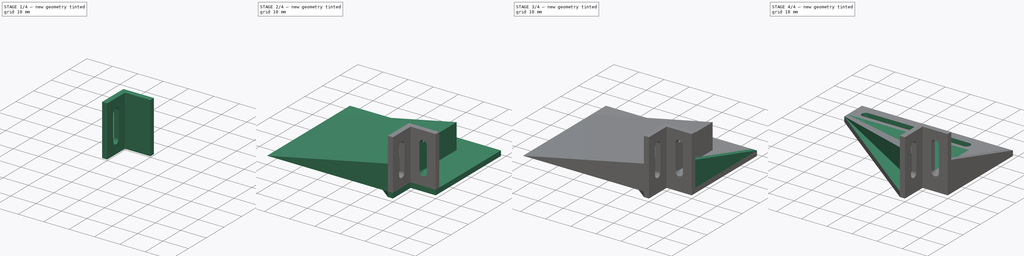
[diagram: build sequence overview — one tinted view per stage of 4, left to right]
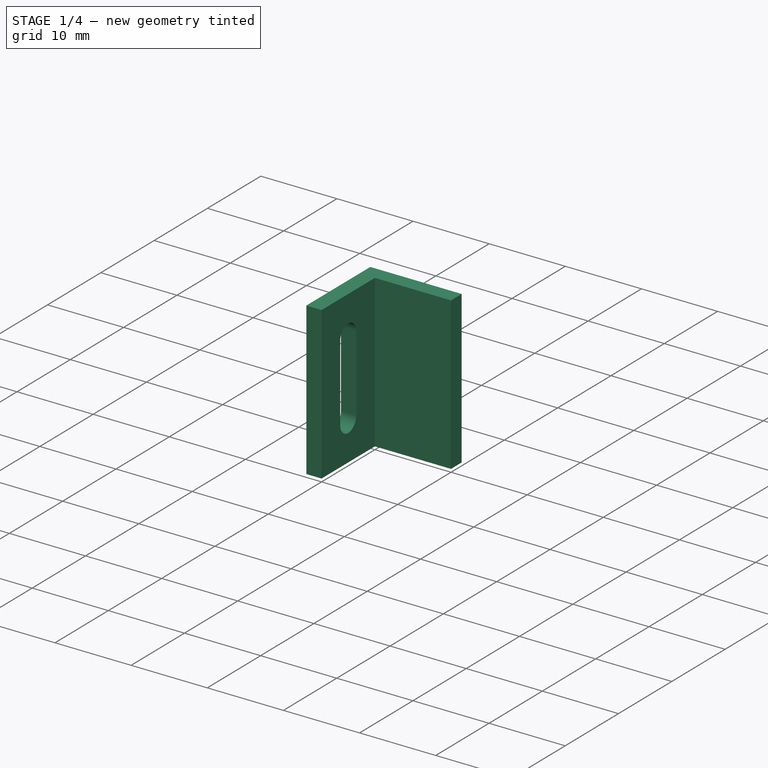
[diagram: stage 1 of 4 — iso view after this stage's code; geometry added in this stage tinted green]
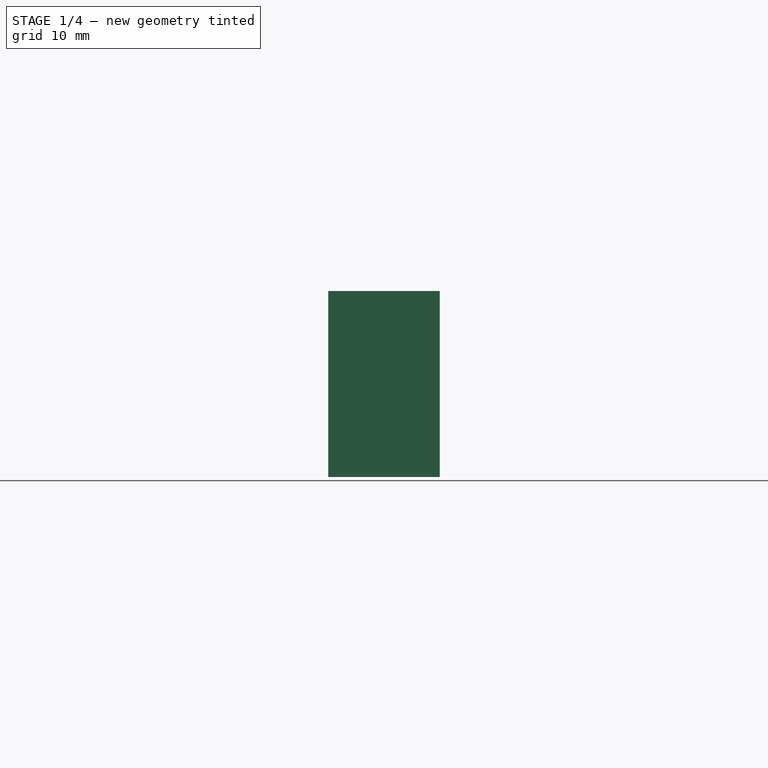
[diagram: stage 1 of 4 — front view after this stage's code; geometry added in this stage tinted green]
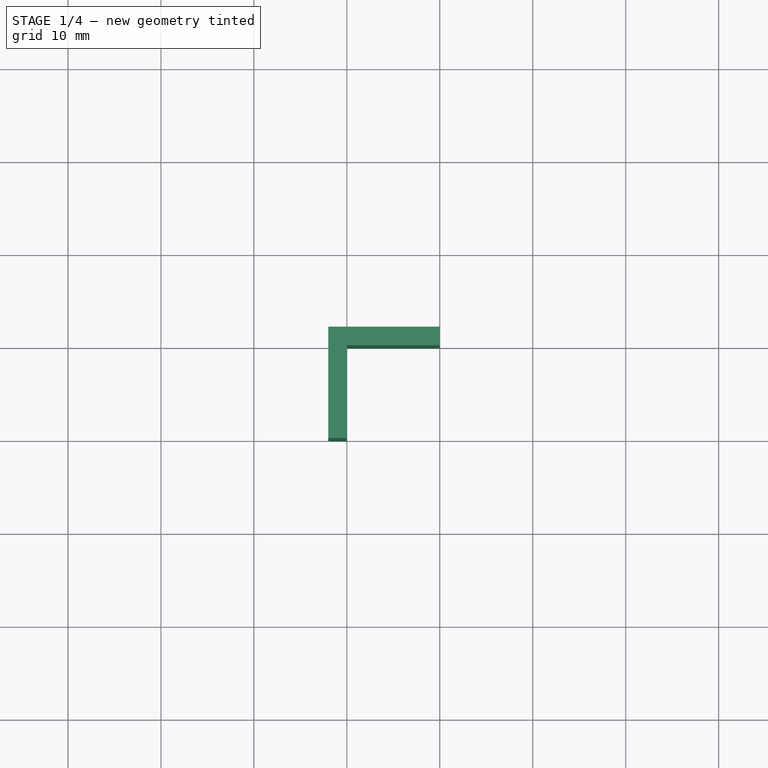
[diagram: stage 1 of 4 — top view after this stage's code; geometry added in this stage tinted green]
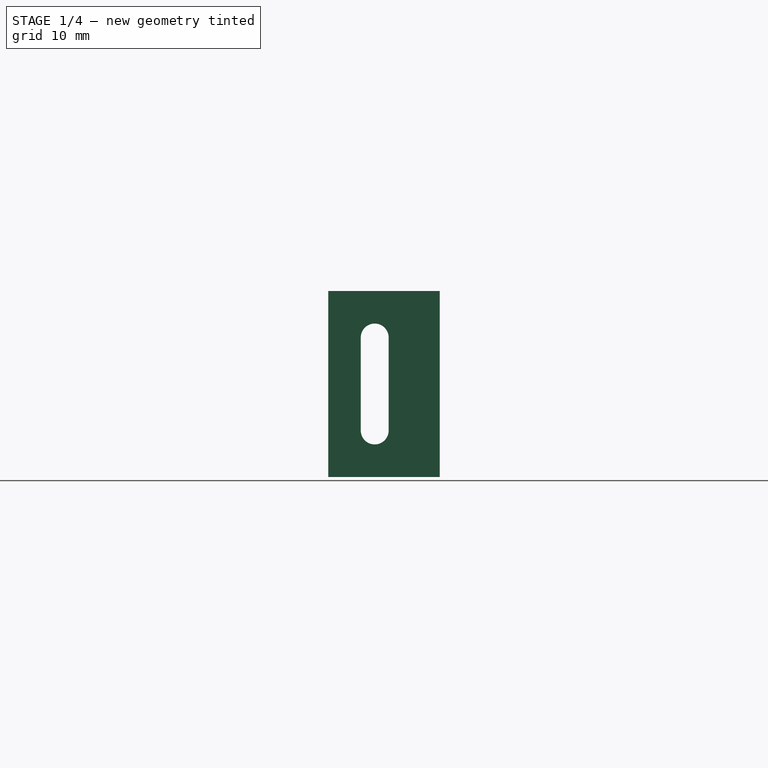
[diagram: stage 1 of 4 — right view after this stage's code; geometry added in this stage tinted green]
FCSTD DOCUMENT  (FreeCAD 0.17R13541 (Git))
Label: PowerTopBracket
License: All rights reserved
LicenseURL: http://en.wikipedia.org/wiki/All_rights_reserved
objects: Sketcher::SketchObject×11, PartDesign::Pocket×6, PartDesign::Pad×5, PartDesign::Body×1
note: 34 computed .brp shape members not serialized (recipe doc carries the construction recipe); baked Part::Feature solids carry a one-line shape summary decoded from their .brp

FEATURE [Sketcher::SketchObject] Sketch
  MapMode = 5
  Placement = pos=(0,0,0) rot=(1,0,0;1.5708rad)
  Support = -> [XZ_Plane001]
  sketch-geometry (4):
    g0: LineSegment StartX=0 StartY=0 StartZ=0 EndX=-2 EndY=0 EndZ=0
    g1: LineSegment StartX=-2 StartY=0 StartZ=0 EndX=-2 EndY=20 EndZ=0
    g2: LineSegment StartX=-2 StartY=20 StartZ=0 EndX=0 EndY=20 EndZ=0
    g3: LineSegment StartX=0 StartY=20 StartZ=0 EndX=0 EndY=0 EndZ=0
  constraints (11):
    c: Coincident(g0,g1)
    c: Coincident(g1,g2)
    c: Coincident(g2,g3)
    c: Coincident(g3,g0)
    c: Horizontal(g0)
    c: Horizontal(g2)
    c: Vertical(g1)
    c: Vertical(g3)
    c: Coincident(g0,g-1)
    c: Distance(g0) = 2
    c: Distance(g1) = 20
FEATURE [PartDesign::Pad] Pad  label="Rack Mount 1"
  Length = 10
  Length2 = 100
  Placement = pos=(0,0,0) rot=(1,0,0;1.5708rad)
  Profile = -> Sketch
  Type = 0
FEATURE [Sketcher::SketchObject] Sketch001
  MapMode = 5
  Placement = pos=(0,0,0) rot=(1,0,0;1.5708rad)
  Support = -> [XZ_Plane001]
  sketch-geometry (6):
    g0: LineSegment [constr] StartX=5 StartY=0 StartZ=0 EndX=5 EndY=20 EndZ=0
    g1: LineSegment [constr] StartX=0 StartY=15 StartZ=0 EndX=10 EndY=15 EndZ=0
    g2: ArcOfCircle CenterX=5 CenterY=15 CenterZ=0 NormalX=0 NormalY=0 NormalZ=1 AngleXU=0 Radius=1.5 StartAngle=0 EndAngle=3.14159
    g3: ArcOfCircle CenterX=5 CenterY=5 CenterZ=0 NormalX=0 NormalY=0 NormalZ=1 AngleXU=0 Radius=1.5 StartAngle=3.14159 EndAngle=6.28319
    g4: LineSegment StartX=3.5 StartY=15 StartZ=0 EndX=3.5 EndY=5 EndZ=0
    g5: LineSegment StartX=6.5 StartY=15 StartZ=0 EndX=6.5 EndY=5 EndZ=0
  constraints (18):
    c: Vertical(g0)
    c: Distance(g0) = 20
    c: DistanceX(g0) = 5
    c: DistanceY(g0) = 0
    c: Horizontal(g1)
    c: Distance(g1) = 10
    c: DistanceX(g1) = 0
    c: DistanceY(g1) = 15
    c: Tangent(g2,g5) = 1.5708
    c: Tangent(g2,g4) = -1.5708
    c: Tangent(g4,g3) = -1.5708
    c: Tangent(g5,g3) = 1.5708
    c: Vertical(g4)
    c: Equal(g2,g3)
    c: Radius(g2) = 1.5
    c: PointOnObject(g2,g1)
    c: PointOnObject(g2,g0)
    c: Distance(g4) = 10
FEATURE [Sketcher::SketchObject] Sketch002
  MapMode = 5
  Placement = pos=(0,0,0) rot=(0.57735,0.57735,0.57735;2.0944rad)
  Support = -> [YZ_Plane001]
  sketch-geometry (8):
    g0: LineSegment [constr] StartX=0 StartY=20 StartZ=0 EndX=-10 EndY=0 EndZ=0
    g1: LineSegment [constr] StartX=-10 StartY=20 StartZ=0 EndX=0 EndY=0 EndZ=0
    g2: LineSegment [constr] StartX=-5 StartY=20 StartZ=0 EndX=-5 EndY=0 EndZ=0
    g3: LineSegment [constr] StartX=-10 StartY=15 StartZ=0 EndX=0 EndY=15 EndZ=0
    g4: ArcOfCircle CenterX=-5 CenterY=15 CenterZ=0 NormalX=0 NormalY=0 NormalZ=1 AngleXU=0 Radius=1.5 StartAngle=0 EndAngle=3.14159
    g5: ArcOfCircle CenterX=-5 CenterY=5 CenterZ=0 NormalX=0 NormalY=0 NormalZ=1 AngleXU=0 Radius=1.5 StartAngle=3.14159 EndAngle=6.28319
    g6: LineSegment StartX=-6.5 StartY=15 StartZ=0 EndX=-6.5 EndY=5 EndZ=0
    g7: LineSegment StartX=-3.5 StartY=15 StartZ=0 EndX=-3.5 EndY=5 EndZ=0
  constraints (25):
    c: PointOnObject(g0,g-2)
    c: PointOnObject(g0,g-1)
    c: Coincident(g1,g-1)
    c: DistanceY(g0,g0) = 20
    c: DistanceX(g1) = -10
    c: DistanceY(g1) = 20
    c: DistanceX(g0,g0) = 10
    c: Vertical(g2)
    c: Distance(g2) = 20
    c: DistanceX(g2) = -5
    c: DistanceY(g2) = 0
    c: Horizontal(g3)
    c: Distance(g3) = 10
    c: DistanceX(g3) = 0
    c: DistanceY(g3) = 15
    c: Tangent(g4,g7) = 1.5708
    c: Tangent(g4,g6) = -1.5708
    c: Tangent(g6,g5) = -1.5708
    c: Tangent(g7,g5) = 1.5708
    c: Vertical(g6)
    c: Equal(g4,g5)
    c: PointOnObject(g4,g2)
    c: PointOnObject(g4,g3)
    c: Radius(g4) = 1.5
    c: Distance(g6) = 10
FEATURE [PartDesign::Pocket] Pocket  label="Rack Mount hole 1"
  BaseFeature = -> Pad
  Length = 2
  Length2 = 100
  Placement = pos=(0,0,0) rot=(1,0,0;1.5708rad)
  Profile = -> Sketch002
  Type = 0
FEATURE [Sketcher::SketchObject] Sketch003
  MapMode = 5
  Placement = pos=(0,0,0) rot=(0.57735,0.57735,0.57735;2.0944rad)
  Support = -> [YZ_Plane001]
  sketch-geometry (4):
    g0: LineSegment StartX=0 StartY=20 StartZ=0 EndX=2 EndY=20 EndZ=0
    g1: LineSegment StartX=2 StartY=20 StartZ=0 EndX=2 EndY=0 EndZ=0
    g2: LineSegment StartX=2 StartY=0 StartZ=0 EndX=0 EndY=0 EndZ=0
    g3: LineSegment StartX=0 StartY=0 StartZ=0 EndX=0 EndY=20 EndZ=0
  constraints (12):
    c: Coincident(g0,g1)
    c: Coincident(g1,g2)
    c: Coincident(g2,g3)
    c: Coincident(g3,g0)
    c: Horizontal(g0)
    c: Horizontal(g2)
    c: Vertical(g1)
    c: Vertical(g3)
    c: Distance(g0) = 2
    c: Distance(g1) = 20
    c: DistanceX(g1) = 2
    c: DistanceY(g1) = 0
FEATURE [PartDesign::Pad] Pad001  label="Rack Mount 2"
  BaseFeature = -> Pocket
  Length = 10
  Length2 = 2
  Placement = pos=(0,0,0) rot=(1,0,0;1.5708rad)
  Profile = -> Sketch003
  Type = 4
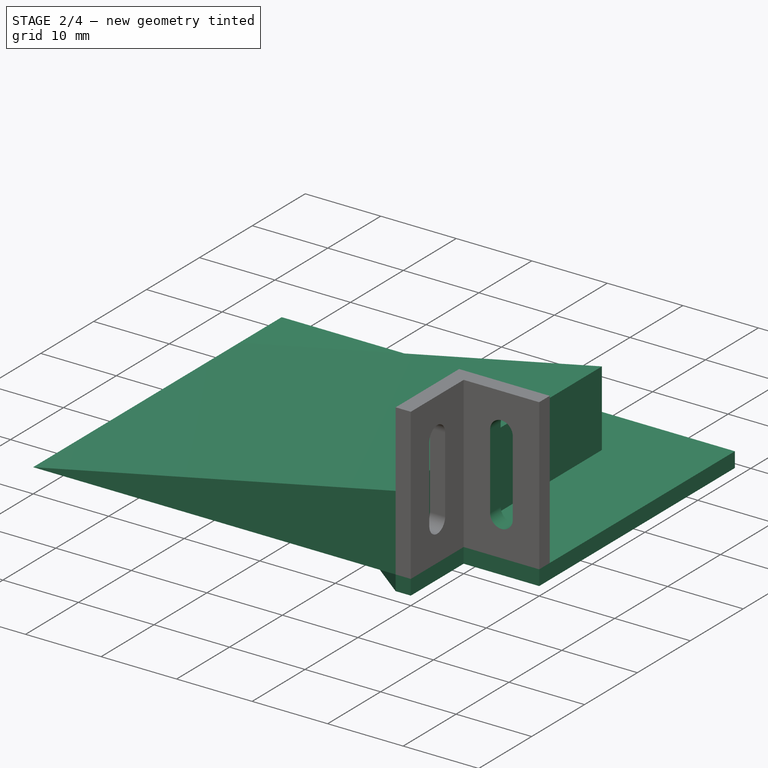
[diagram: stage 2 of 4 — iso view after this stage's code; geometry added in this stage tinted green]
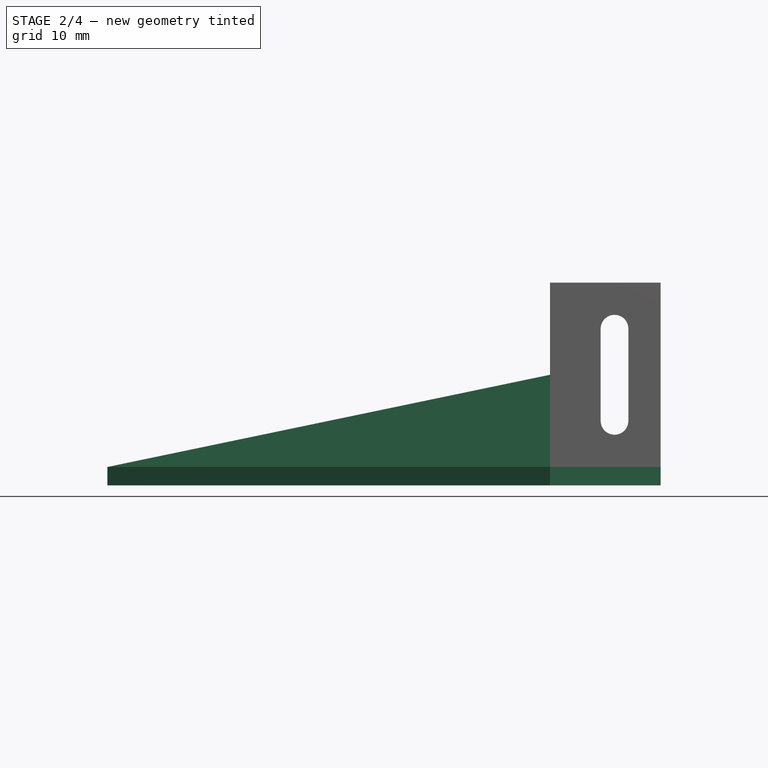
[diagram: stage 2 of 4 — front view after this stage's code; geometry added in this stage tinted green]
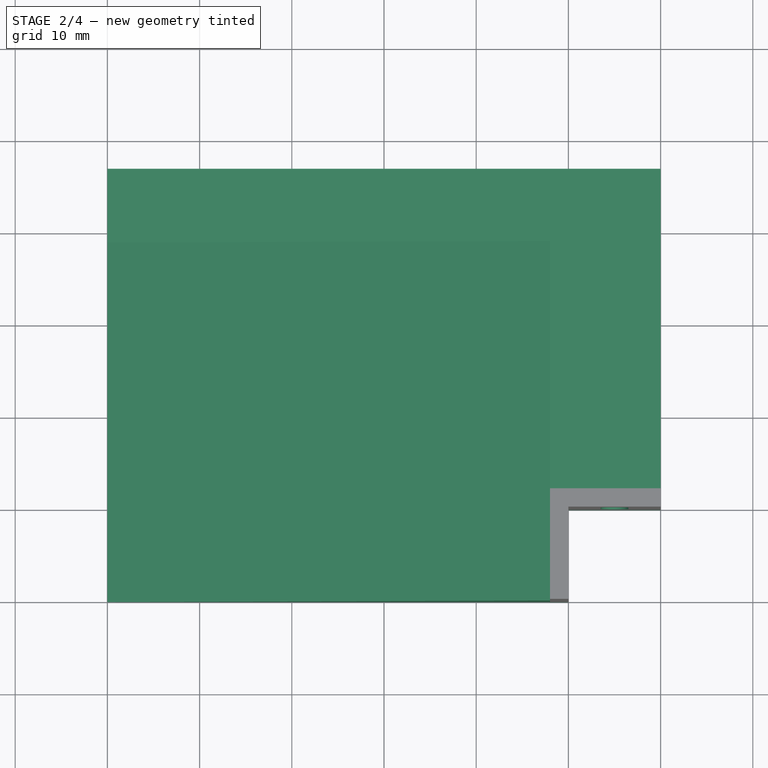
[diagram: stage 2 of 4 — top view after this stage's code; geometry added in this stage tinted green]
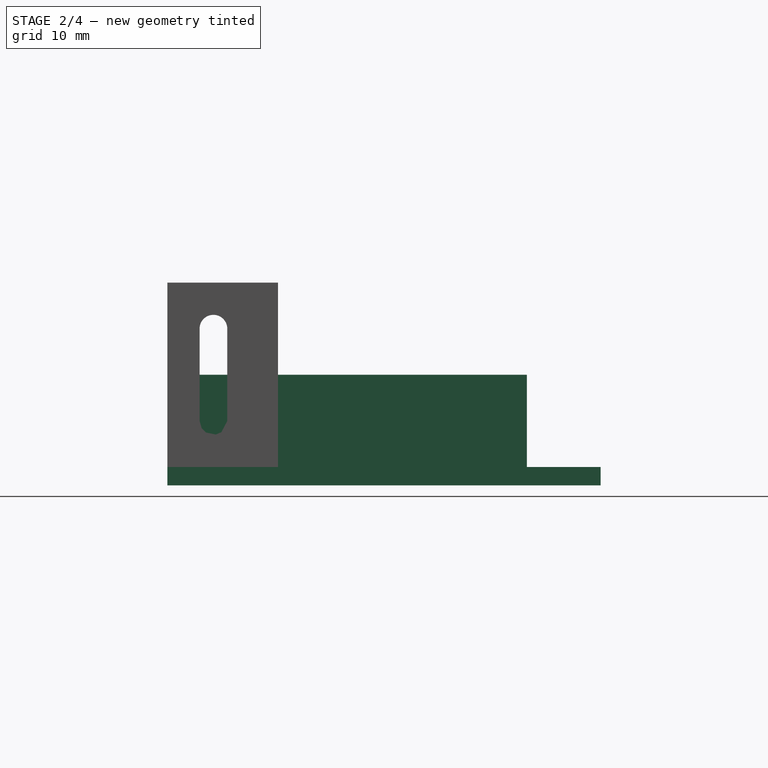
[diagram: stage 2 of 4 — right view after this stage's code; geometry added in this stage tinted green]
FEATURE [PartDesign::Pocket] Pocket001  label="Rack Mount hole 2"
  BaseFeature = -> Pad001
  Length = 5
  Length2 = 100
  Placement = pos=(0,0,0) rot=(1,0,0;1.5708rad)
  Profile = -> Sketch001
  Type = 1
FEATURE [Sketcher::SketchObject] Sketch004
  MapMode = 5
  Support = -> [XY_Plane001]
  sketch-geometry (7):
    g0: LineSegment StartX=-50 StartY=37 StartZ=0 EndX=10 EndY=37 EndZ=0
    g1: LineSegment StartX=10 StartY=37 StartZ=0 EndX=10 EndY=0 EndZ=0
    g2: LineSegment StartX=-50 StartY=37 StartZ=0 EndX=-50 EndY=27 EndZ=0
    g3: LineSegment StartX=-50 StartY=27 StartZ=0 EndX=-2 EndY=-10 EndZ=0
    g4: LineSegment StartX=0 StartY=0 StartZ=0 EndX=0 EndY=-10 EndZ=0
    g5: LineSegment StartX=0 StartY=0 StartZ=0 EndX=10 EndY=0 EndZ=0
    g6: LineSegment StartX=0 StartY=-10 StartZ=0 EndX=-2 EndY=-10 EndZ=0
  constraints (20):
    c: Horizontal(g0)
    c: Coincident(g1,g0)
    c: Vertical(g1)
    c: Coincident(g2,g0)
    c: Vertical(g2)
    c: Distance(g0) = 60
    c: Distance(g2) = 10
    c: Coincident(g3,g2)
    c: Distance(g1) = 37
    c: Coincident(g4,g-1)
    c: Vertical(g4)
    c: Distance(g4) = 10
    c: Coincident(g5,g-1)
    c: Horizontal(g5)
    c: Distance(g5) = 10
    c: Coincident(g6,g4)
    c: Horizontal(g6)
    c: Distance(g6) = 2
    c: Coincident(g3,g6)
    c: Coincident(g1,g5)
FEATURE [PartDesign::Pad] Pad002  label="Mounting Pad"
  BaseFeature = -> Pocket001
  Length = 2
  Length2 = 100
  Placement = pos=(0,0,0) rot=(1,0,0;1.5708rad)
  Profile = -> Sketch004
  Reversed = true
  Type = 0
FEATURE [Sketcher::SketchObject] Sketch005
  MapMode = 5
  Placement = pos=(0,0,0) rot=(1,0,0;1.5708rad)
  Support = -> [XZ_Plane001]
  sketch-geometry (3):
    g0: LineSegment StartX=-2 StartY=0 StartZ=0 EndX=-50 EndY=0 EndZ=0
    g1: LineSegment StartX=-50 StartY=0 StartZ=0 EndX=-2 EndY=10 EndZ=0
    g2: LineSegment StartX=-2 StartY=10 StartZ=0 EndX=-2 EndY=0 EndZ=0
  constraints (9):
    c: Horizontal(g0)
    c: Coincident(g1,g0)
    c: Coincident(g2,g1)
    c: Coincident(g2,g0)
    c: Vertical(g2)
    c: Distance(g2) = 10
    c: Distance(g0) = 48
    c: DistanceX(g0) = -2
    c: DistanceY(g0) = 0
FEATURE [PartDesign::Pad] Pad003  label="Support 1"
  BaseFeature = -> Pad002
  Length = 10
  Length2 = 29
  Placement = pos=(0,0,0) rot=(1,0,0;1.5708rad)
  Profile = -> Sketch005
  Type = 4
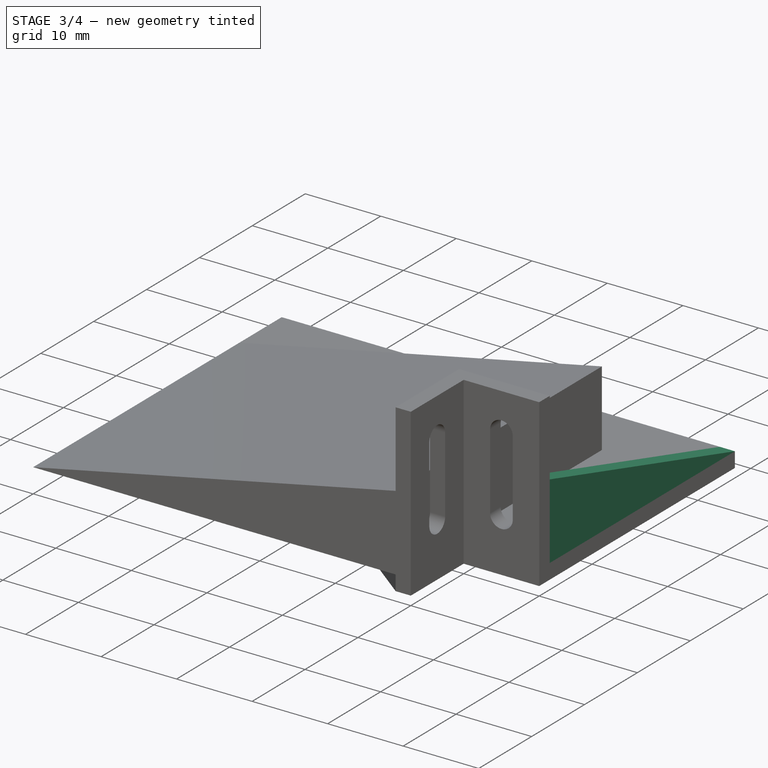
[diagram: stage 3 of 4 — iso view after this stage's code; geometry added in this stage tinted green]
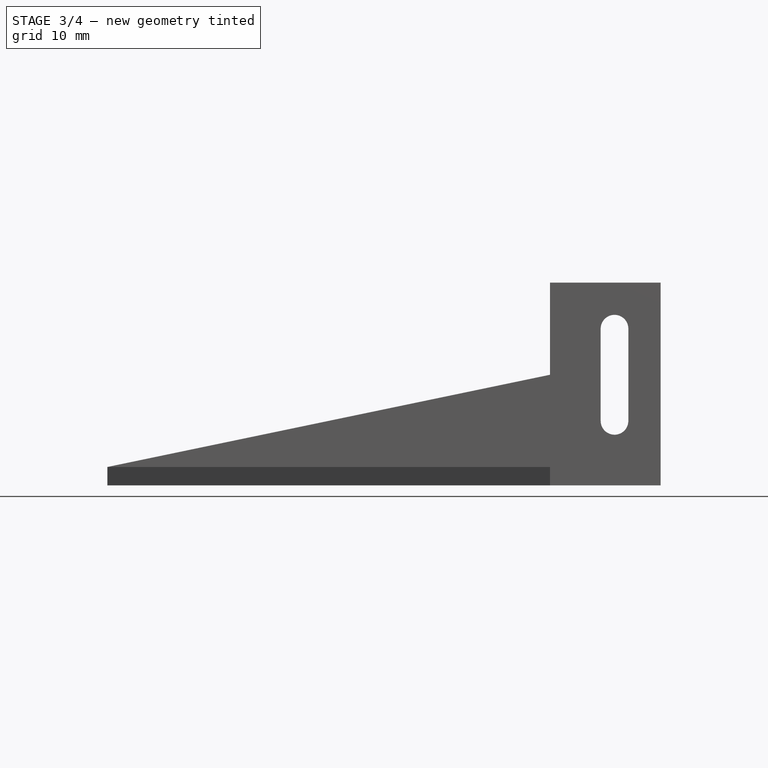
[diagram: stage 3 of 4 — front view after this stage's code; geometry added in this stage tinted green]
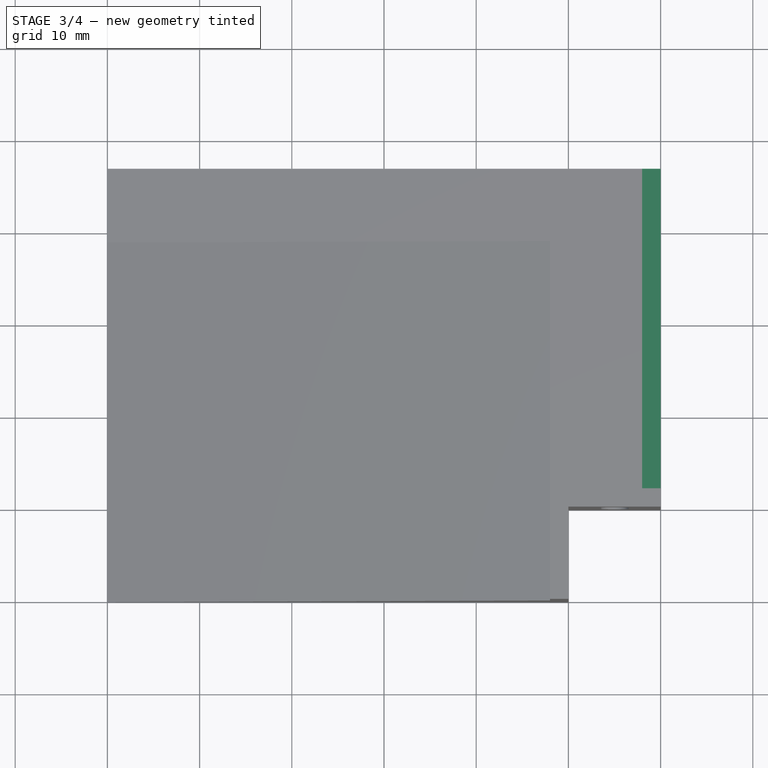
[diagram: stage 3 of 4 — top view after this stage's code; geometry added in this stage tinted green]
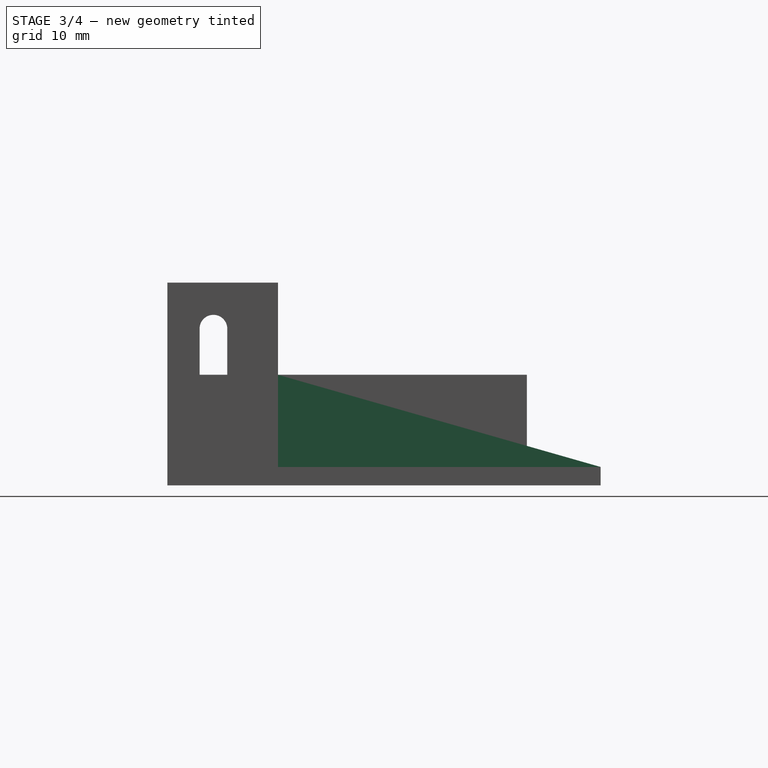
[diagram: stage 3 of 4 — right view after this stage's code; geometry added in this stage tinted green]
FEATURE [Sketcher::SketchObject] Sketch006
  MapMode = 5
  Placement = pos=(0,0,0) rot=(0.57735,0.57735,0.57735;2.0944rad)
  Support = -> [YZ_Plane001]
  sketch-geometry (3):
    g0: LineSegment StartX=2 StartY=10 StartZ=0 EndX=2 EndY=0 EndZ=0
    g1: LineSegment StartX=2 StartY=0 StartZ=0 EndX=37 EndY=0 EndZ=0
    g2: LineSegment StartX=37 StartY=0 StartZ=0 EndX=2 EndY=10 EndZ=0
  constraints (9):
    c: Vertical(g0)
    c: Coincident(g1,g0)
    c: Horizontal(g1)
    c: Coincident(g2,g1)
    c: Coincident(g2,g0)
    c: Distance(g1) = 35
    c: Distance(g0) = 10
    c: DistanceX(g0) = 2
    c: DistanceY(g0) = 0
FEATURE [PartDesign::Pad] Pad004  label="Support 2"
  BaseFeature = -> Pad003
  Length = 10
  Length2 = 100
  Placement = pos=(0,0,0) rot=(1,0,0;1.5708rad)
  Profile = -> Sketch006
  Type = 0
FEATURE [Sketcher::SketchObject] Sketch007
  MapMode = 5
  Placement = pos=(0,0,0) rot=(0.57735,0.57735,0.57735;2.0944rad)
  Support = -> [YZ_Plane001]
  sketch-geometry (3):
    g0: LineSegment StartX=2 StartY=10 StartZ=0 EndX=2 EndY=0 EndZ=0
    g1: LineSegment StartX=2 StartY=0 StartZ=0 EndX=37 EndY=0 EndZ=0
    g2: LineSegment StartX=37 StartY=0 StartZ=0 EndX=2 EndY=10 EndZ=0
  constraints (9):
    c: Vertical(g0)
    c: Coincident(g1,g0)
    c: Horizontal(g1)
    c: Coincident(g2,g1)
    c: Coincident(g2,g0)
    c: Distance(g1) = 35
    c: Distance(g0) = 10
    c: DistanceX(g0) = 2
    c: DistanceY(g0) = 0
FEATURE [PartDesign::Pocket] Pocket002
  BaseFeature = -> Pad004
  Length = 2
  Length2 = 8
  Placement = pos=(0,0,0) rot=(1,0,0;1.5708rad)
  Profile = -> Sketch007
  Type = 4
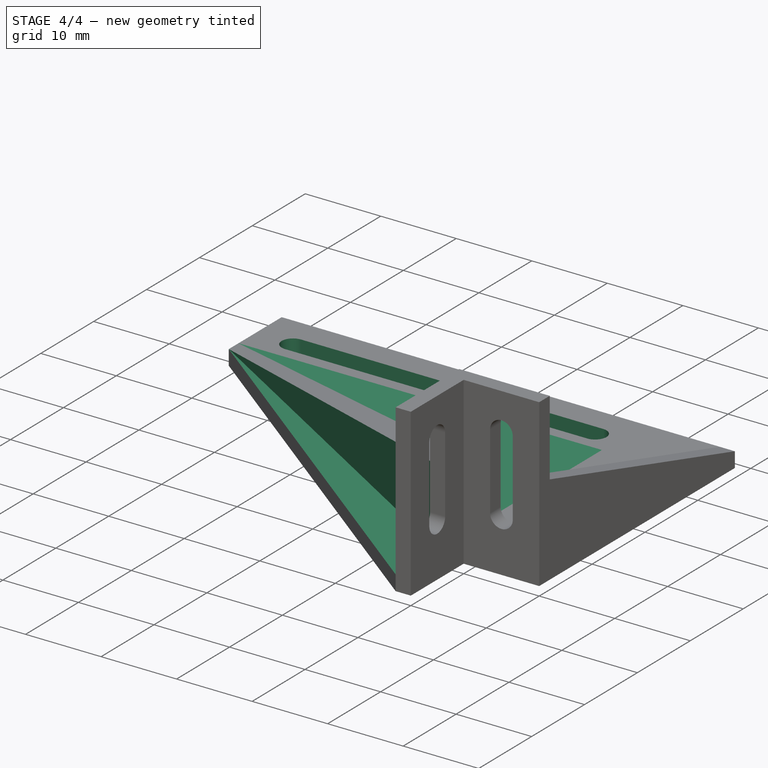
[diagram: stage 4 of 4 — iso view after this stage's code; geometry added in this stage tinted green]
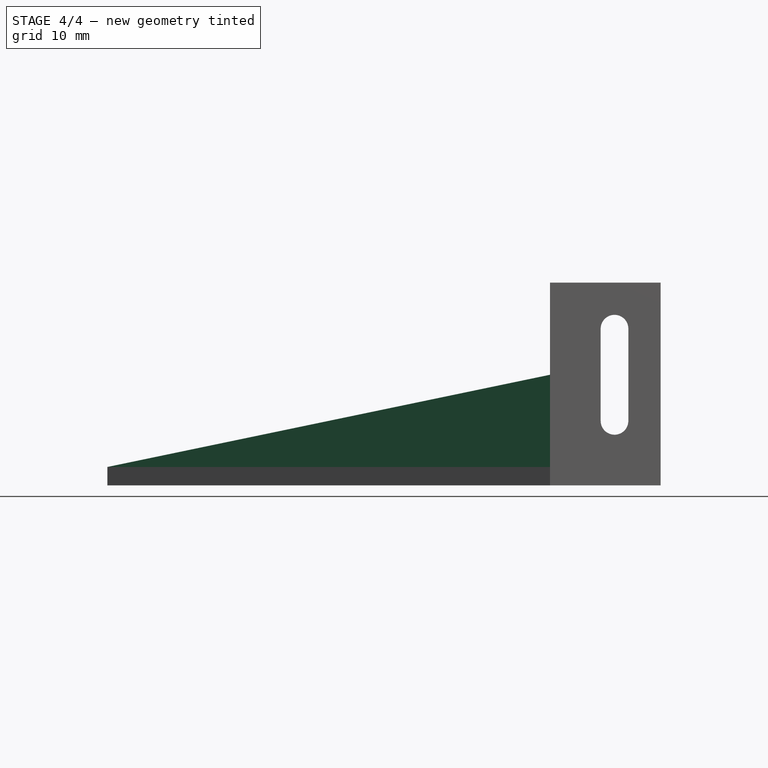
[diagram: stage 4 of 4 — front view after this stage's code; geometry added in this stage tinted green]
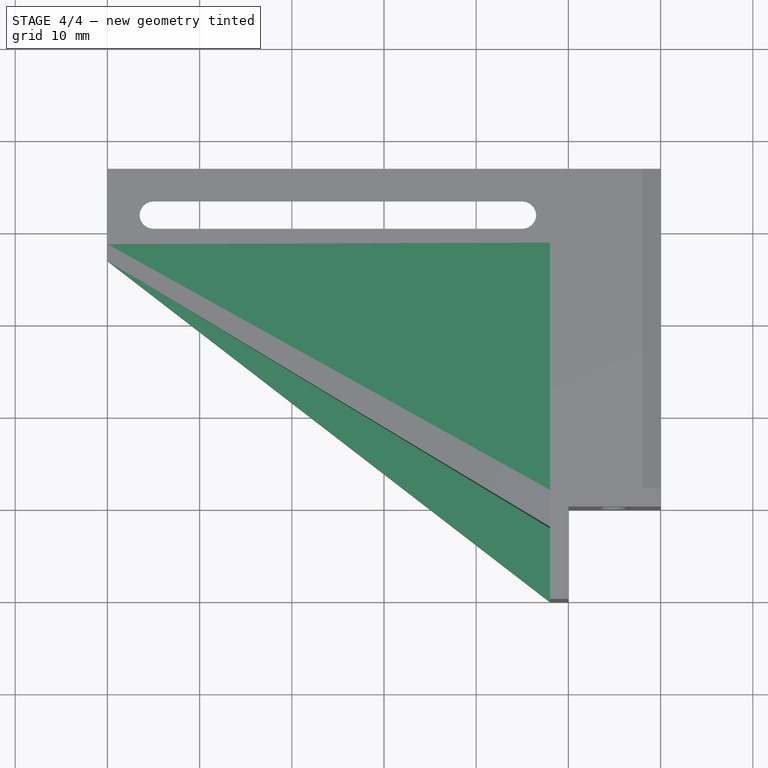
[diagram: stage 4 of 4 — top view after this stage's code; geometry added in this stage tinted green]
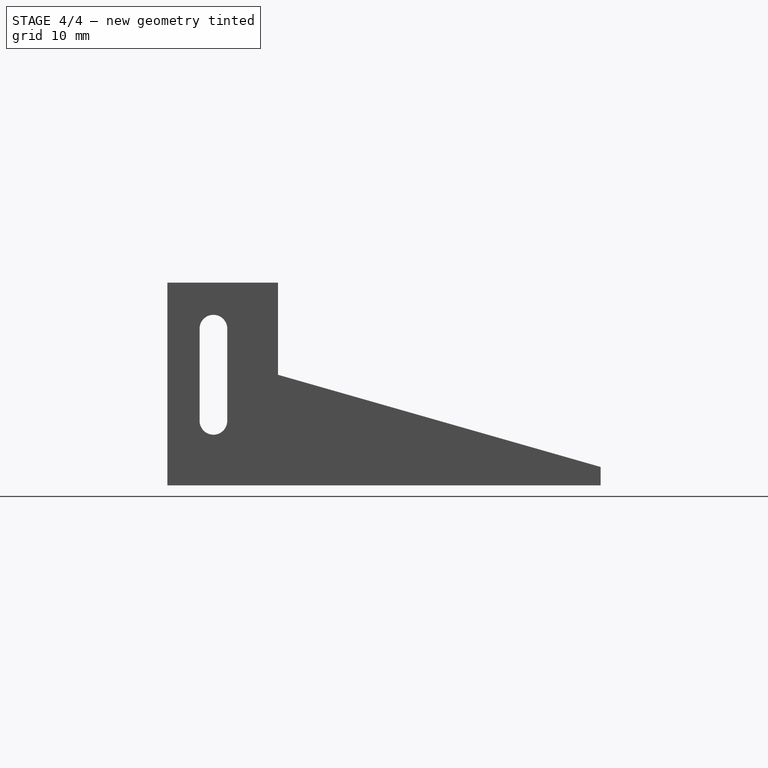
[diagram: stage 4 of 4 — right view after this stage's code; geometry added in this stage tinted green]
FEATURE [Sketcher::SketchObject] Sketch008
  MapMode = 5
  Support = -> [XY_Plane001]
  sketch-geometry (4):
    g0: LineSegment StartX=-50 StartY=27 StartZ=0 EndX=-2 EndY=-2 EndZ=0
    g1: LineSegment StartX=-50 StartY=-12 StartZ=0 EndX=-50 EndY=27 EndZ=0
    g2: LineSegment StartX=-2 StartY=-2 StartZ=0 EndX=-2 EndY=-12 EndZ=0
    g3: LineSegment StartX=-2 StartY=-12 StartZ=0 EndX=-50 EndY=-12 EndZ=0
  constraints (12):
    c: Coincident(g1,g0)
    c: Vertical(g1)
    c: DistanceX(g0) = -2
    c: DistanceY(g0) = -2
    c: Distance(g1) = 39
    c: Coincident(g2,g0)
    c: Vertical(g2)
    c: Distance(g2) = 10
    c: Coincident(g3,g2)
    c: Horizontal(g3)
    c: Distance(g3) = 48
    c: Coincident(g1,g3)
FEATURE [PartDesign::Pocket] Pocket003
  BaseFeature = -> Pocket002
  Length = 5
  Length2 = 100
  Placement = pos=(0,0,0) rot=(1,0,0;1.5708rad)
  Profile = -> Sketch008
  Reversed = true
  Type = 1
FEATURE [Sketcher::SketchObject] Sketch009
  MapMode = 5
  Support = -> [XY_Plane001]
  sketch-geometry (4):
    g0: LineSegment StartX=-2 StartY=2 StartZ=0 EndX=-2 EndY=37 EndZ=0
    g1: LineSegment StartX=-2 StartY=37 StartZ=0 EndX=-50 EndY=37 EndZ=0
    g2: LineSegment StartX=-50 StartY=37 StartZ=0 EndX=-50 EndY=28.831 EndZ=0
    g3: LineSegment StartX=-50 StartY=28.831 StartZ=0 EndX=-2 EndY=2 EndZ=0
  constraints (11):
    c: Vertical(g0)
    c: Coincident(g1,g0)
    c: Horizontal(g1)
    c: Coincident(g2,g1)
    c: Vertical(g2)
    c: Coincident(g3,g2)
    c: Coincident(g3,g0)
    c: DistanceX(g0) = -2
    c: DistanceY(g0) = 2
    c: Distance(g0) = 35
    c: Distance(g1) = 48
FEATURE [PartDesign::Pocket] Pocket004
  BaseFeature = -> Pocket003
  Length = 5
  Length2 = 100
  Placement = pos=(0,0,0) rot=(1,0,0;1.5708rad)
  Profile = -> Sketch009
  Reversed = true
  Type = 1
FEATURE [Sketcher::SketchObject] Sketch010
  MapMode = 5
  Support = -> [XY_Plane001]
  sketch-geometry (4):
    g0: ArcOfCircle CenterX=-45 CenterY=32 CenterZ=0 NormalX=0 NormalY=0 NormalZ=1 AngleXU=0 Radius=1.5 StartAngle=1.5708 EndAngle=4.71239
    g1: ArcOfCircle CenterX=-5 CenterY=32 CenterZ=0 NormalX=0 NormalY=0 NormalZ=1 AngleXU=0 Radius=1.5 StartAngle=4.71239 EndAngle=7.85398
    g2: LineSegment StartX=-45 StartY=30.5 StartZ=0 EndX=-5 EndY=30.5 EndZ=0
    g3: LineSegment StartX=-45 StartY=33.5 StartZ=0 EndX=-5 EndY=33.5 EndZ=0
  constraints (10):
    c: Tangent(g0,g3) = 1.5708
    c: Tangent(g0,g2) = -1.5708
    c: Tangent(g2,g1) = -1.5708
    c: Tangent(g3,g1) = 1.5708
    c: Horizontal(g2)
    c: Equal(g0,g1)
    c: Radius(g0) = 1.5
    c: DistanceX(g0) = -45
    c: DistanceY(g0) = 32
    c: Distance(g2) = 40
FEATURE [PartDesign::Pocket] Pocket005  label="Mounting hole"
  BaseFeature = -> Pocket004
  Length = 5
  Length2 = 100
  Placement = pos=(0,0,0) rot=(1,0,0;1.5708rad)
  Profile = -> Sketch010
  Type = 1
FEATURE [PartDesign::Body] Body
  Group = -> [Sketch,Pad,Sketch001,Sketch002,Pocket,Sketch003,Pad001,Pocket001,Sketch004,Pad002,Sketch005,Pad003,Sketch006,Pad004,Sketch007,Pocket002,Sketch008,Pocket003,Sketch009,Pocket004,Sketch010,Pocket005]
  Origin = -> Origin001
  Tip = -> Pocket005
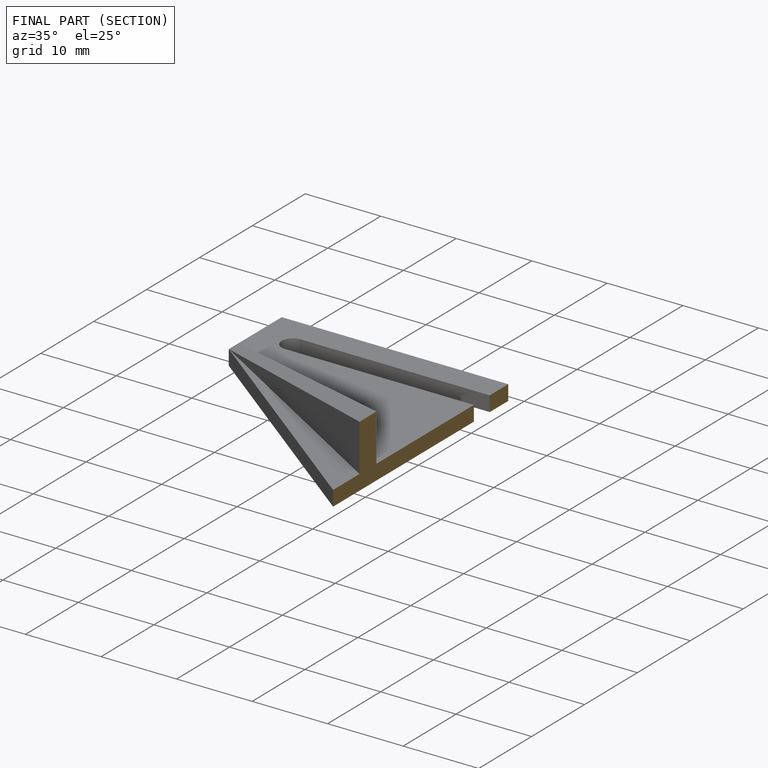
[diagram: finished part — half-section view (interior)]
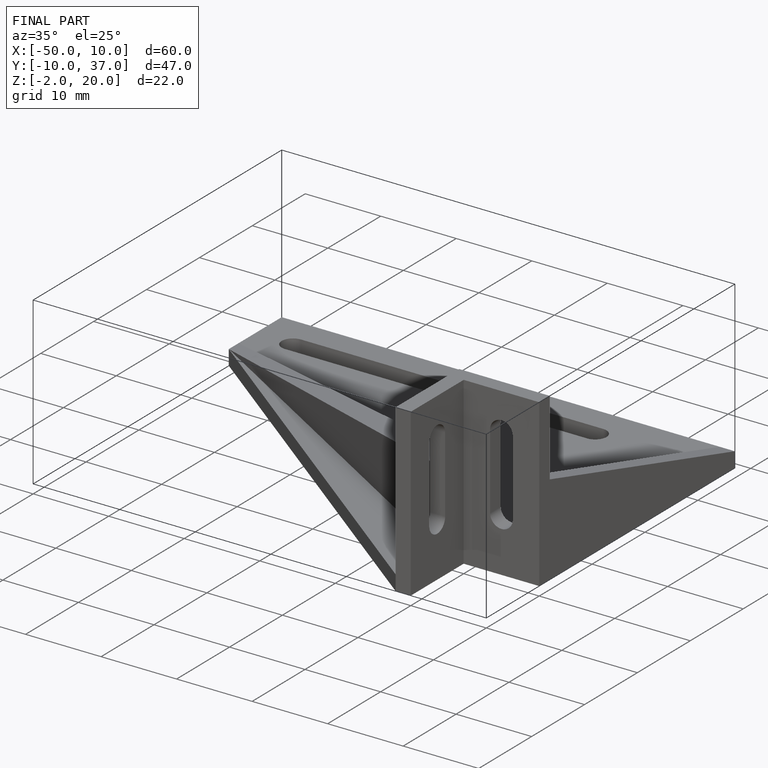
[diagram: finished part — iso view with bounding-box wireframe]
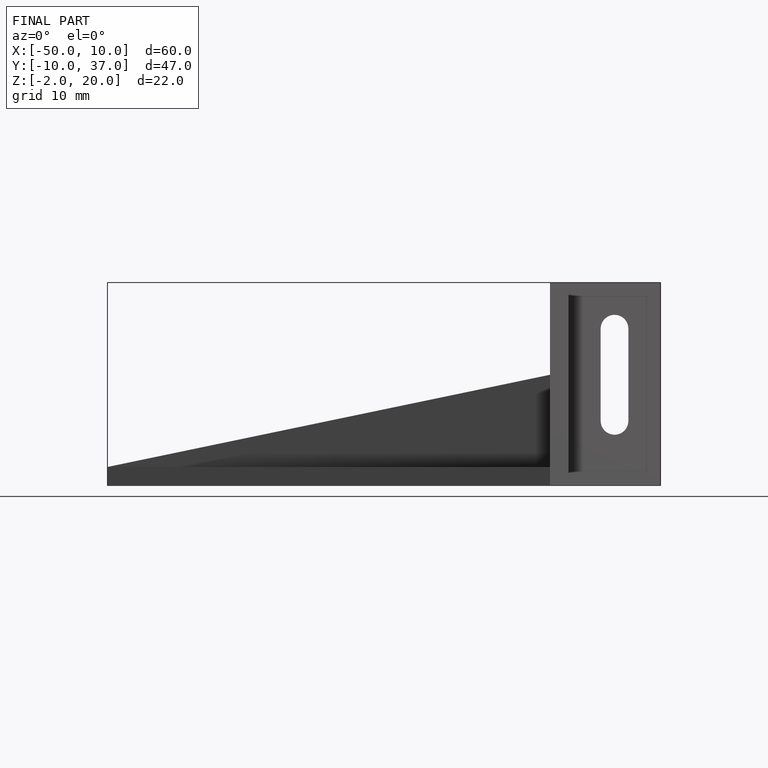
[diagram: finished part — front view with bounding-box wireframe]
